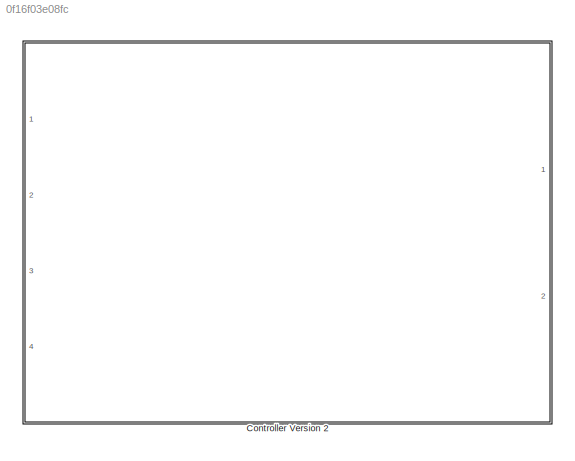
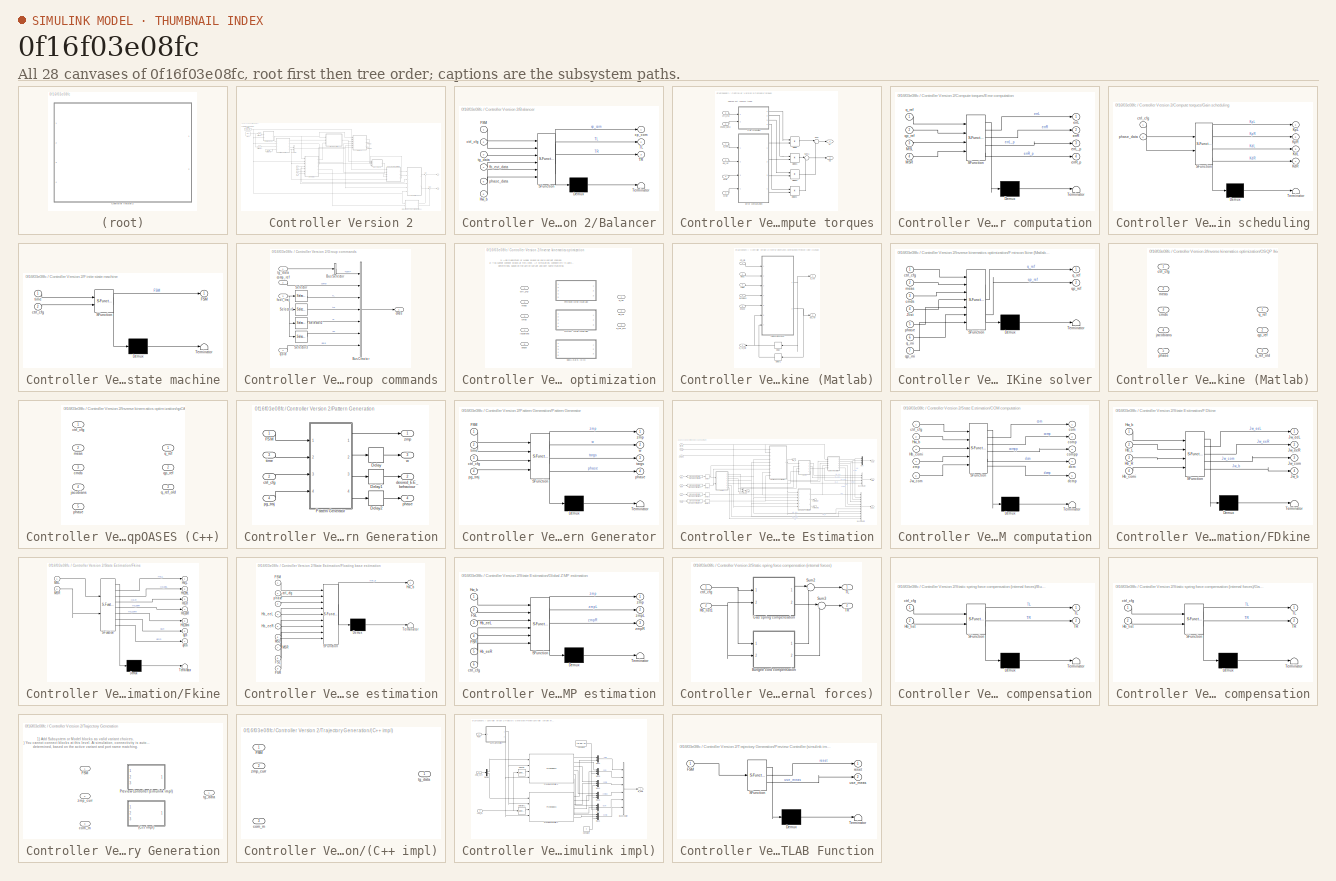
[diagram: thumbnail index - all 28 canvases of the model, root first then tree order]
MODEL slx_0f16f03e08fc
KIND model
CONFIG AbsTol = auto
CONFIG EnableMultiTasking = off
CONFIG FixedStep = auto
CONFIG MaxStep = auto
CONFIG MinStep = auto
CONFIG RelTol = 1e-3
CONFIG SampleTimeConstraint = Unconstrained
CONFIG SolverName = ode23
CONFIG StartTime = 0.0
CONFIG StopTime = Tsim
BLOCK [SubSystem] Controller Version 2
  Ports = [4, 2]
  RequestExecContextInheritance = off
BLOCK [SubSystem] Controller Version 2/Balancer
  ErrorFcn = Stateflow.Translate.translate
  PermitHierarchicalResolution = ExplicitOnly
  Ports = [6, 3]
  RequestExecContextInheritance = off
  SFBlockType = MATLAB Function
  TreatAsAtomicUnit = on
BLOCK [Demux] Controller Version 2/Balancer/ Demux 
  Outputs = 1
  Ports = [1, 1]
BLOCK [S-Function] Controller Version 2/Balancer/ SFunction 
  EnableBusSupport = on
  FunctionName = sf_sfun
  PortCounts = [6 4]
  Ports = [6, 4]
  SFcnIsStateOwnerBlock = off
  SFunctionDeploymentMode = off
  Tag = Stateflow S-Function 6
BLOCK [Terminator] Controller Version 2/Balancer/ Terminator 
BLOCK [Inport] Controller Version 2/Balancer/FSM
BLOCK [Inport] Controller Version 2/Balancer/Hw_b
  Port = 6
BLOCK [Outport] Controller Version 2/Balancer/TL
  Port = 2
BLOCK [Outport] Controller Version 2/Balancer/TR
  Port = 3
BLOCK [Inport] Controller Version 2/Balancer/ctrl_cfg
  Port = 2
BLOCK [Inport] Controller Version 2/Balancer/fb_est_data
  Port = 4
BLOCK [Inport] Controller Version 2/Balancer/phase_data
  Port = 5
BLOCK [Inport] Controller Version 2/Balancer/tg_data
  Port = 3
BLOCK [Outport] Controller Version 2/Balancer/xp_com
BLOCK [BusCreator] Controller Version 2/Bus Creator
  DisplayOption = bar
  InheritFromInputs = on
  Inputs = 2
  Ports = [2, 1]
BLOCK [Clock] Controller Version 2/Clock
  Decimation = 1
  DisplayTime = on
BLOCK [SubSystem] Controller Version 2/Compute torques
  NameLocation = top
  Ports = [6, 2]
  RequestExecContextInheritance = off
BLOCK [Product] Controller Version 2/Compute torques/Divide
  Inputs = **
  Multiplication = Matrix(*)
  Ports = [2, 1]
BLOCK [Product] Controller Version 2/Compute torques/Divide1
  Inputs = **
  Multiplication = Matrix(*)
  Ports = [2, 1]
BLOCK [Product] Controller Version 2/Compute torques/Divide2
  Inputs = **
  Multiplication = Matrix(*)
  Ports = [2, 1]
BLOCK [Product] Controller Version 2/Compute torques/Divide3
  Inputs = **
  Multiplication = Matrix(*)
  Ports = [2, 1]
BLOCK [SubSystem] Controller Version 2/Compute torques/Error computation
  ErrorFcn = Stateflow.Translate.translate
  PermitHierarchicalResolution = ExplicitOnly
  Ports = [4, 4]
  RequestExecContextInheritance = off
  SFBlockType = MATLAB Function
  TreatAsAtomicUnit = on
BLOCK [Demux] Controller Version 2/Compute torques/Error computation/ Demux 
  Outputs = 1
  Ports = [1, 1]
BLOCK [S-Function] Controller Version 2/Compute torques/Error computation/ SFunction 
  EnableBusSupport = on
  FunctionName = sf_sfun
  PortCounts = [4 5]
  Ports = [4, 5]
  SFcnIsStateOwnerBlock = off
  SFunctionDeploymentMode = off
  Tag = Stateflow S-Function 13
BLOCK [Terminator] Controller Version 2/Compute torques/Error computation/ Terminator 
BLOCK [Inport] Controller Version 2/Compute torques/Error computation/MSL
  Port = 3
BLOCK [Inport] Controller Version 2/Compute torques/Error computation/MSR
  Port = 4
BLOCK [Outport] Controller Version 2/Compute torques/Error computation/errL
BLOCK [Outport] Controller Version 2/Compute torques/Error computation/errL_p
  Port = 3
BLOCK [Outport] Controller Version 2/Compute torques/Error computation/errR
  Port = 2
BLOCK [Outport] Controller Version 2/Compute torques/Error computation/errR_p
  Port = 4
BLOCK [Inport] Controller Version 2/Compute torques/Error computation/q_ref
BLOCK [Inport] Controller Version 2/Compute torques/Error computation/qp_ref
  Port = 2
BLOCK [SubSystem] Controller Version 2/Compute torques/Gain scheduling
  ErrorFcn = Stateflow.Translate.translate
  PermitHierarchicalResolution = ExplicitOnly
  Ports = [2, 4]
  RequestExecContextInheritance = off
  SFBlockType = MATLAB Function
  TreatAsAtomicUnit = on
BLOCK [Demux] Controller Version 2/Compute torques/Gain scheduling/ Demux 
  Outputs = 1
  Ports = [1, 1]
BLOCK [S-Function] Controller Version 2/Compute torques/Gain scheduling/ SFunction 
  EnableBusSupport = on
  FunctionName = sf_sfun
  PortCounts = [2 5]
  Ports = [2, 5]
  SFcnIsStateOwnerBlock = off
  SFunctionDeploymentMode = off
  Tag = Stateflow S-Function 12
BLOCK [Terminator] Controller Version 2/Compute torques/Gain scheduling/ Terminator 
BLOCK [Outport] Controller Version 2/Compute torques/Gain scheduling/KdL
  Port = 3
BLOCK [Outport] Controller Version 2/Compute torques/Gain scheduling/KdR
  Port = 4
BLOCK [Outport] Controller Version 2/Compute torques/Gain scheduling/KpL
BLOCK [Outport] Controller Version 2/Compute torques/Gain scheduling/KpR
  Port = 2
BLOCK [Inport] Controller Version 2/Compute torques/Gain scheduling/ctrl_cfg
BLOCK [Inport] Controller Version 2/Compute torques/Gain scheduling/phase_data
  Port = 2
BLOCK [Inport] Controller Version 2/Compute torques/MSL
  Port = 3
BLOCK [Inport] Controller Version 2/Compute torques/MSR
  Port = 4
BLOCK [Sum] Controller Version 2/Compute torques/Sum
  Inputs = |++
  Ports = [2, 1]
BLOCK [Sum] Controller Version 2/Compute torques/Sum1
  Inputs = |++
  Ports = [2, 1]
BLOCK [Outport] Controller Version 2/Compute torques/TL
BLOCK [Outport] Controller Version 2/Compute torques/TR
  Port = 2
BLOCK [Inport] Controller Version 2/Compute torques/ctrl_cfg
  Port = 6
BLOCK [Inport] Controller Version 2/Compute torques/phase_data
  Port = 5
BLOCK [Inport] Controller Version 2/Compute torques/q_ref
BLOCK [Inport] Controller Version 2/Compute torques/qp_ref
  Port = 2
BLOCK [Constant] Controller Version 2/Configuration parameters of the controller
  NameLocation = top
  OutDataTypeStr = Bus: ctrl_cfg_rem_bus
  SampleTime = ctrl_cfg_rem.par.Ts
  Value = ctrl_cfg_rem
BLOCK [Constant] Controller Version 2/Entire trajectory
  OutDataTypeStr = Bus: pg_traj_bus
  SampleTime = ctrl_cfg_rem.par.Ts
  Value = pg_traj
  VectorParams1D = off
BLOCK [Inport] Controller Version 2/FSL
  Port = 3
BLOCK [Inport] Controller Version 2/FSR
  Port = 4
BLOCK [SubSystem] Controller Version 2/Finite state machine
  ErrorFcn = Stateflow.Translate.translate
  PermitHierarchicalResolution = ExplicitOnly
  Ports = [2, 1]
  RequestExecContextInheritance = off
  SFBlockType = MATLAB Function
  TreatAsAtomicUnit = on
BLOCK [Demux] Controller Version 2/Finite state machine/ Demux 
  Outputs = 1
  Ports = [1, 1]
BLOCK [S-Function] Controller Version 2/Finite state machine/ SFunction 
  EnableBusSupport = on
  FunctionName = sf_sfun
  PortCounts = [2 2]
  Ports = [2, 2]
  SFcnIsStateOwnerBlock = off
  SFunctionDeploymentMode = off
  Tag = Stateflow S-Function 1
BLOCK [Terminator] Controller Version 2/Finite state machine/ Terminator 
BLOCK [Outport] Controller Version 2/Finite state machine/FSM
BLOCK [Inport] Controller Version 2/Finite state machine/ctrl_cfg
  Port = 2
BLOCK [Inport] Controller Version 2/Finite state machine/time
BLOCK [SubSystem] Controller Version 2/Group commands
  Ports = [4, 1]
  RequestExecContextInheritance = off
BLOCK [BusCreator] Controller Version 2/Group commands/Bus Creator
  DisplayOption = bar
  InheritFromInputs = on
  Inputs = 7
  Ports = [7, 1]
BLOCK [BusSelector] Controller Version 2/Group commands/Bus Selector
  OutputSignals = com
  Ports = [1, 1]
BLOCK [Selector] Controller Version 2/Group commands/Selector
  IndexOptions = Index vector (dialog)
  Indices = [1:3]
  InputPortWidth = 12
  OutputSizes = 1
  Ports = [1, 1]
BLOCK [Selector] Controller Version 2/Group commands/Selector1
  IndexOptions = Index vector (dialog)
  Indices = [4:6]
  InputPortWidth = 12
  OutputSizes = 1
  Ports = [1, 1]
BLOCK [Selector] Controller Version 2/Group commands/Selector2
  IndexOptions = Index vector (dialog)
  Indices = [7:9]
  InputPortWidth = 12
  OutputSizes = 1
  Ports = [1, 1]
BLOCK [Selector] Controller Version 2/Group commands/Selector3
  IndexOptions = Index vector (dialog)
  Indices = [10:12]
  InputPortWidth = 12
  OutputSizes = 1
  Ports = [1, 1]
BLOCK [Outport] Controller Version 2/Group commands/cmds
BLOCK [Inport] Controller Version 2/Group commands/comp_ref
  Port = 2
BLOCK [Inport] Controller Version 2/Group commands/foot_traj
  Port = 3
BLOCK [Inport] Controller Version 2/Group commands/qold
  Port = 4
BLOCK [Inport] Controller Version 2/Group commands/tg_data
BLOCK [SubSystem] Controller Version 2/Inverse kinematics optimization
  NameLocation = top
  Ports = [5, 3]
  RequestExecContextInheritance = off
  Variant = on
BLOCK [SubSystem] Controller Version 2/Inverse kinematics optimization/Fmincon Ikine (Matlab)
  Ports = [5, 3]
  RequestExecContextInheritance = off
  VariantControl = VAR_IK ==1
BLOCK [Delay] Controller Version 2/Inverse kinematics optimization/Fmincon Ikine (Matlab)/Delay
  DelayLength = 1
  InitialCondition = ik_opt.q_ini
  InputPortMap = u0
  NameLocation = top
  Ports = [1, 1]
  SampleTime = Ts
BLOCK [Delay] Controller Version 2/Inverse kinematics optimization/Fmincon Ikine (Matlab)/Delay1
  DelayLength = 1
  InitialCondition = ik_opt.qp_ini
  InputPortMap = u0
  NameLocation = top
  Ports = [1, 1]
  SampleTime = Ts
BLOCK [SubSystem] Controller Version 2/Inverse kinematics optimization/Fmincon Ikine (Matlab)/Full body IKine solver
  ErrorFcn = Stateflow.Translate.translate
  PermitHierarchicalResolution = ExplicitOnly
  Ports = [7, 2]
  RequestExecContextInheritance = off
  SFBlockType = MATLAB Function
  TreatAsAtomicUnit = on
BLOCK [Demux] Controller Version 2/Inverse kinematics optimization/Fmincon Ikine (Matlab)/Full body IKine solver/ Demux 
  Outputs = 1
  Ports = [1, 1]
BLOCK [S-Function] Controller Version 2/Inverse kinematics optimization/Fmincon Ikine (Matlab)/Full body IKine solver/ SFunction 
  EnableBusSupport = on
  FunctionName = sf_sfun
  PortCounts = [7 3]
  Ports = [7, 3]
  SFcnIsStateOwnerBlock = off
  SFunctionDeploymentMode = off
  Tag = Stateflow S-Function 14
BLOCK [Terminator] Controller Version 2/Inverse kinematics optimization/Fmincon Ikine (Matlab)/Full body IKine solver/ Terminator 
BLOCK [Inport] Controller Version 2/Inverse kinematics optimization/Fmincon Ikine (Matlab)/Full body IKine solver/Jlist
  Port = 4
BLOCK [Inport] Controller Version 2/Inverse kinematics optimization/Fmincon Ikine (Matlab)/Full body IKine solver/cmds
  Port = 3
BLOCK [Inport] Controller Version 2/Inverse kinematics optimization/Fmincon Ikine (Matlab)/Full body IKine solver/ctrl_cfg
BLOCK [Inport] Controller Version 2/Inverse kinematics optimization/Fmincon Ikine (Matlab)/Full body IKine solver/meas
  Port = 2
BLOCK [Inport] Controller Version 2/Inverse kinematics optimization/Fmincon Ikine (Matlab)/Full body IKine solver/phase
  Port = 5
BLOCK [Inport] Controller Version 2/Inverse kinematics optimization/Fmincon Ikine (Matlab)/Full body IKine solver/q_ini
  Port = 6
BLOCK [Outport] Controller Version 2/Inverse kinematics optimization/Fmincon Ikine (Matlab)/Full body IKine solver/q_ref
BLOCK [Inport] Controller Version 2/Inverse kinematics optimization/Fmincon Ikine (Matlab)/Full body IKine solver/qp_ini
  Port = 7
BLOCK [Outport] Controller Version 2/Inverse kinematics optimization/Fmincon Ikine (Matlab)/Full body IKine solver/qp_ref
  Port = 2
BLOCK [Inport] Controller Version 2/Inverse kinematics optimization/Fmincon Ikine (Matlab)/cmds
  Port = 3
BLOCK [Inport] Controller Version 2/Inverse kinematics optimization/Fmincon Ikine (Matlab)/ctrl_cfg
BLOCK [Inport] Controller Version 2/Inverse kinematics optimization/Fmincon Ikine (Matlab)/jacobians
  Port = 4
BLOCK [Inport] Controller Version 2/Inverse kinematics optimization/Fmincon Ikine (Matlab)/meas
  Port = 2
BLOCK [Inport] Controller Version 2/Inverse kinematics optimization/Fmincon Ikine (Matlab)/phase
  Port = 5
BLOCK [Outport] Controller Version 2/Inverse kinematics optimization/Fmincon Ikine (Matlab)/q_ref
BLOCK [Outport] Controller Version 2/Inverse kinematics optimization/Fmincon Ikine (Matlab)/q_ref_old
  NameLocation = top
  Port = 3
BLOCK [Outport] Controller Version 2/Inverse kinematics optimization/Fmincon Ikine (Matlab)/qp_ref
  Port = 2
BLOCK [SubSystem] Controller Version 2/Inverse kinematics optimization/OSQP Ikine (Matlab)
  Ports = [5, 3]
  RequestExecContextInheritance = off
  VariantControl = VAR_IK ==2
BLOCK [Inport] Controller Version 2/Inverse kinematics optimization/OSQP Ikine (Matlab)/cmds
  Port = 3
BLOCK [Inport] Controller Version 2/Inverse kinematics optimization/OSQP Ikine (Matlab)/ctrl_cfg
BLOCK [Inport] Controller Version 2/Inverse kinematics optimization/OSQP Ikine (Matlab)/jacobians
  Port = 4
BLOCK [Inport] Controller Version 2/Inverse kinematics optimization/OSQP Ikine (Matlab)/meas
  Port = 2
BLOCK [Inport] Controller Version 2/Inverse kinematics optimization/OSQP Ikine (Matlab)/phase
  Port = 5
BLOCK [Outport] Controller Version 2/Inverse kinematics optimization/OSQP Ikine (Matlab)/q_ref
BLOCK [Outport] Controller Version 2/Inverse kinematics optimization/OSQP Ikine (Matlab)/q_ref_old
  Port = 3
BLOCK [Outport] Controller Version 2/Inverse kinematics optimization/OSQP Ikine (Matlab)/qp_ref
  Port = 2
BLOCK [Inport] Controller Version 2/Inverse kinematics optimization/cmds
  Port = 3
BLOCK [Inport] Controller Version 2/Inverse kinematics optimization/ctrl_cfg
BLOCK [Inport] Controller Version 2/Inverse kinematics optimization/jacobians
  Port = 4
BLOCK [Inport] Controller Version 2/Inverse kinematics optimization/meas
  Port = 2
BLOCK [Inport] Controller Version 2/Inverse kinematics optimization/phase
  Port = 5
BLOCK [Outport] Controller Version 2/Inverse kinematics optimization/q_ref
BLOCK [Outport] Controller Version 2/Inverse kinematics optimization/q_ref_old
  Port = 3
BLOCK [SubSystem] Controller Version 2/Inverse kinematics optimization/qpOASES (C++)
  Ports = [5, 3]
  RequestExecContextInheritance = off
  VariantControl = VAR_IK ==3
BLOCK [Inport] Controller Version 2/Inverse kinematics optimization/qpOASES (C++)/cmds
  Port = 3
BLOCK [Inport] Controller Version 2/Inverse kinematics optimization/qpOASES (C++)/ctrl_cfg
BLOCK [Inport] Controller Version 2/Inverse kinematics optimization/qpOASES (C++)/jacobians
  Port = 4
BLOCK [Inport] Controller Version 2/Inverse kinematics optimization/qpOASES (C++)/meas
  Port = 2
BLOCK [Inport] Controller Version 2/Inverse kinematics optimization/qpOASES (C++)/phase
  Port = 5
BLOCK [Outport] Controller Version 2/Inverse kinematics optimization/qpOASES (C++)/q_ref
BLOCK [Outport] Controller Version 2/Inverse kinematics optimization/qpOASES (C++)/q_ref_old
  Port = 3
BLOCK [Outport] Controller Version 2/Inverse kinematics optimization/qpOASES (C++)/qp_ref
  Port = 2
BLOCK [Outport] Controller Version 2/Inverse kinematics optimization/qp_ref
  Port = 2
BLOCK [Inport] Controller Version 2/MSL
BLOCK [Inport] Controller Version 2/MSR
  Port = 2
BLOCK [SubSystem] Controller Version 2/Pattern Generation
  Ports = [4, 4]
  RequestExecContextInheritance = off
BLOCK [Delay] Controller Version 2/Pattern Generation/Delay
  DelayLength = ctrl_cfg_rem.tg.N_L
  InitialCondition = 0
  InputPortMap = u0
  Ports = [1, 1]
  SampleTime = ctrl_cfg_rem.par.Ts
BLOCK [Delay] Controller Version 2/Pattern Generation/Delay1
  DelayLength = ctrl_cfg_rem.tg.N_L
  InitialCondition = 0
  InputPortMap = u0
  Ports = [1, 1]
  SampleTime = ctrl_cfg_rem.par.Ts
BLOCK [Delay] Controller Version 2/Pattern Generation/Delay2
  DelayLength = ctrl_cfg_rem.tg.N_L
  InitialCondition = 0
  InputPortMap = u0
  Ports = [1, 1]
  SampleTime = ctrl_cfg_rem.par.Ts
BLOCK [Inport] Controller Version 2/Pattern Generation/FSM
BLOCK [SubSystem] Controller Version 2/Pattern Generation/Pattern Generator
  ErrorFcn = Stateflow.Translate.translate
  PermitHierarchicalResolution = ExplicitOnly
  Ports = [4, 4]
  RequestExecContextInheritance = off
  SFBlockType = MATLAB Function
  TreatAsAtomicUnit = on
BLOCK [Demux] Controller Version 2/Pattern Generation/Pattern Generator/ Demux 
  Outputs = 1
  Ports = [1, 1]
BLOCK [S-Function] Controller Version 2/Pattern Generation/Pattern Generator/ SFunction 
  EnableBusSupport = on
  FunctionName = sf_sfun
  PortCounts = [4 5]
  Ports = [4, 5]
  SFcnIsStateOwnerBlock = off
  SFunctionDeploymentMode = off
  Tag = Stateflow S-Function 2
BLOCK [Terminator] Controller Version 2/Pattern Generation/Pattern Generator/ Terminator 
BLOCK [Inport] Controller Version 2/Pattern Generation/Pattern Generator/FSM
BLOCK [Inport] Controller Version 2/Pattern Generation/Pattern Generator/ctrl_cfg
  Port = 3
BLOCK [Inport] Controller Version 2/Pattern Generation/Pattern Generator/pg_traj
  Port = 4
BLOCK [Outport] Controller Version 2/Pattern Generation/Pattern Generator/phase
  Port = 4
BLOCK [Outport] Controller Version 2/Pattern Generation/Pattern Generator/targs
  Port = 3
BLOCK [Inport] Controller Version 2/Pattern Generation/Pattern Generator/time
  Port = 2
BLOCK [Outport] Controller Version 2/Pattern Generation/Pattern Generator/w
  Port = 2
BLOCK [Outport] Controller Version 2/Pattern Generation/Pattern Generator/zmp
BLOCK [Inport] Controller Version 2/Pattern Generation/ctrl_cfg
  Port = 2
BLOCK [Outport] Controller Version 2/Pattern Generation/desired_EE_behaviour
  Port = 2
BLOCK [Inport] Controller Version 2/Pattern Generation/pg_traj
  Port = 4
BLOCK [Outport] Controller Version 2/Pattern Generation/phase
  Port = 4
BLOCK [Inport] Controller Version 2/Pattern Generation/time
  Port = 3
BLOCK [Outport] Controller Version 2/Pattern Generation/w
  Port = 3
BLOCK [Outport] Controller Version 2/Pattern Generation/zmp
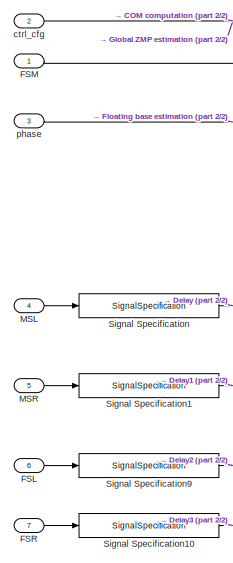
[diagram: Controller Version 2/State Estimation - part 1/2, left side, full height]
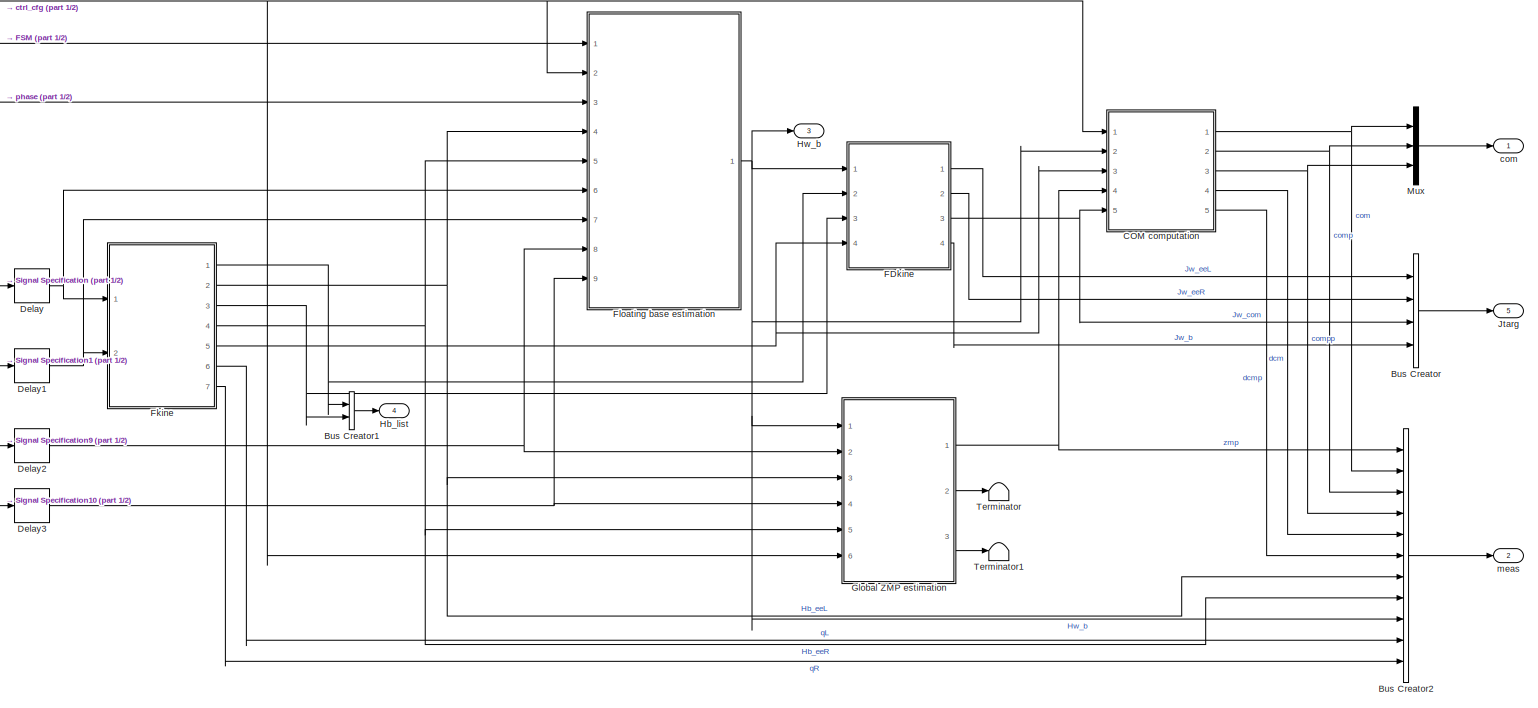
[diagram: Controller Version 2/State Estimation - part 2/2, most of the canvas]
BLOCK [SubSystem] Controller Version 2/State Estimation
  Ports = [7, 5]
  RequestExecContextInheritance = off
BLOCK [BusCreator] Controller Version 2/State Estimation/Bus Creator
  DisplayOption = bar
  InheritFromInputs = on
  Inputs = 4
  Ports = [4, 1]
BLOCK [BusCreator] Controller Version 2/State Estimation/Bus Creator1
  DisplayOption = bar
  InheritFromInputs = on
  Inputs = 2
  Ports = [2, 1]
BLOCK [BusCreator] Controller Version 2/State Estimation/Bus Creator2
  DisplayOption = bar
  InheritFromInputs = on
  Inputs = 11
  Ports = [11, 1]
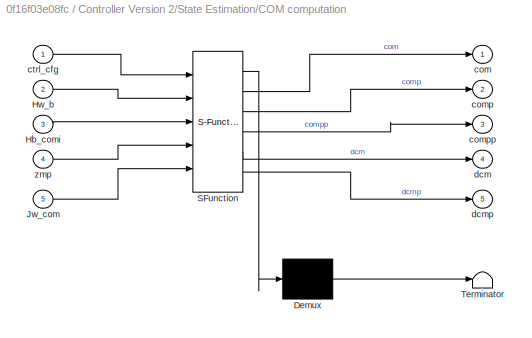
BLOCK [SubSystem] Controller Version 2/State Estimation/COM computation
  ErrorFcn = Stateflow.Translate.translate
  PermitHierarchicalResolution = ExplicitOnly
  Ports = [5, 5]
  RequestExecContextInheritance = off
  SFBlockType = MATLAB Function
  TreatAsAtomicUnit = on
BLOCK [Demux] Controller Version 2/State Estimation/COM computation/ Demux 
  Outputs = 1
  Ports = [1, 1]
BLOCK [S-Function] Controller Version 2/State Estimation/COM computation/ SFunction 
  EnableBusSupport = on
  FunctionName = sf_sfun
  PortCounts = [5 6]
  Ports = [5, 6]
  SFcnIsStateOwnerBlock = off
  SFunctionDeploymentMode = off
  Tag = Stateflow S-Function 9
BLOCK [Terminator] Controller Version 2/State Estimation/COM computation/ Terminator 
BLOCK [Inport] Controller Version 2/State Estimation/COM computation/Hb_comi
  Port = 3
BLOCK [Inport] Controller Version 2/State Estimation/COM computation/Hw_b
  Port = 2
BLOCK [Inport] Controller Version 2/State Estimation/COM computation/Jw_com
  Port = 5
BLOCK [Outport] Controller Version 2/State Estimation/COM computation/com
BLOCK [Outport] Controller Version 2/State Estimation/COM computation/comp
  Port = 2
BLOCK [Outport] Controller Version 2/State Estimation/COM computation/compp
  Port = 3
BLOCK [Inport] Controller Version 2/State Estimation/COM computation/ctrl_cfg
BLOCK [Outport] Controller Version 2/State Estimation/COM computation/dcm
  Port = 4
BLOCK [Outport] Controller Version 2/State Estimation/COM computation/dcmp
  Port = 5
BLOCK [Inport] Controller Version 2/State Estimation/COM computation/zmp
  Port = 4
BLOCK [Delay] Controller Version 2/State Estimation/Delay
  DelayLength = 1
  InitialCondition = fb_est.init.MSL
  InputPortMap = u0
  Ports = [1, 1]
  SampleTime = Ts
BLOCK [Delay] Controller Version 2/State Estimation/Delay1
  DelayLength = 1
  InitialCondition = fb_est.init.MSR
  InputPortMap = u0
  Ports = [1, 1]
  SampleTime = Ts
BLOCK [Delay] Controller Version 2/State Estimation/Delay2
  DelayLength = 1
  InitialCondition = fb_est.init.FSL
  InputPortMap = u0
  Ports = [1, 1]
  SampleTime = Ts
BLOCK [Delay] Controller Version 2/State Estimation/Delay3
  DelayLength = 1
  InitialCondition = fb_est.init.FSR
  InputPortMap = u0
  Ports = [1, 1]
  SampleTime = Ts
BLOCK [SubSystem] Controller Version 2/State Estimation/FDkine
  ErrorFcn = Stateflow.Translate.translate
  PermitHierarchicalResolution = ExplicitOnly
  Ports = [4, 4]
  RequestExecContextInheritance = off
  SFBlockType = MATLAB Function
  TreatAsAtomicUnit = on
BLOCK [Demux] Controller Version 2/State Estimation/FDkine/ Demux 
  Outputs = 1
  Ports = [1, 1]
BLOCK [S-Function] Controller Version 2/State Estimation/FDkine/ SFunction 
  EnableBusSupport = on
  FunctionName = sf_sfun
  PortCounts = [4 5]
  Ports = [4, 5]
  SFcnIsStateOwnerBlock = off
  SFunctionDeploymentMode = off
  Tag = Stateflow S-Function 8
BLOCK [Terminator] Controller Version 2/State Estimation/FDkine/ Terminator 
BLOCK [Inport] Controller Version 2/State Estimation/FDkine/Hb_L
  Port = 2
BLOCK [Inport] Controller Version 2/State Estimation/FDkine/Hb_R
  Port = 3
BLOCK [Inport] Controller Version 2/State Estimation/FDkine/Hb_comi
  Port = 4
BLOCK [Inport] Controller Version 2/State Estimation/FDkine/Hw_b
BLOCK [Outport] Controller Version 2/State Estimation/FDkine/Jw_b
  Port = 4
BLOCK [Outport] Controller Version 2/State Estimation/FDkine/Jw_com
  Port = 3
BLOCK [Outport] Controller Version 2/State Estimation/FDkine/Jw_eeL
BLOCK [Outport] Controller Version 2/State Estimation/FDkine/Jw_eeR
  Port = 2
BLOCK [Inport] Controller Version 2/State Estimation/FSL
  Port = 6
BLOCK [Inport] Controller Version 2/State Estimation/FSM
BLOCK [Inport] Controller Version 2/State Estimation/FSR
  Port = 7
BLOCK [SubSystem] Controller Version 2/State Estimation/Fkine
  ErrorFcn = Stateflow.Translate.translate
  PermitHierarchicalResolution = ExplicitOnly
  Ports = [2, 7]
  RequestExecContextInheritance = off
  SFBlockType = MATLAB Function
  TreatAsAtomicUnit = on
BLOCK [Demux] Controller Version 2/State Estimation/Fkine/ Demux 
  Outputs = 1
  Ports = [1, 1]
BLOCK [S-Function] Controller Version 2/State Estimation/Fkine/ SFunction 
  EnableBusSupport = on
  FunctionName = sf_sfun
  PortCounts = [2 8]
  Ports = [2, 8]
  SFcnIsStateOwnerBlock = off
  SFunctionDeploymentMode = off
  Tag = Stateflow S-Function 4
BLOCK [Terminator] Controller Version 2/State Estimation/Fkine/ Terminator 
BLOCK [Outport] Controller Version 2/State Estimation/Fkine/Hb_L
BLOCK [Outport] Controller Version 2/State Estimation/Fkine/Hb_R
  Port = 3
BLOCK [Outport] Controller Version 2/State Estimation/Fkine/Hb_comi
  Port = 5
BLOCK [Outport] Controller Version 2/State Estimation/Fkine/Hb_eeL
  Port = 2
BLOCK [Outport] Controller Version 2/State Estimation/Fkine/Hb_eeR
  Port = 4
BLOCK [Inport] Controller Version 2/State Estimation/Fkine/MSL
BLOCK [Inport] Controller Version 2/State Estimation/Fkine/MSR
  Port = 2
BLOCK [Outport] Controller Version 2/State Estimation/Fkine/qLm
  Port = 6
BLOCK [Outport] Controller Version 2/State Estimation/Fkine/qRm
  Port = 7
BLOCK [SubSystem] Controller Version 2/State Estimation/Floating base estimation
  ErrorFcn = Stateflow.Translate.translate
  PermitHierarchicalResolution = ExplicitOnly
  Ports = [9, 1]
  RequestExecContextInheritance = off
  SFBlockType = MATLAB Function
  TreatAsAtomicUnit = on
BLOCK [Demux] Controller Version 2/State Estimation/Floating base estimation/ Demux 
  Outputs = 1
  Ports = [1, 1]
BLOCK [S-Function] Controller Version 2/State Estimation/Floating base estimation/ SFunction 
  EnableBusSupport = on
  FunctionName = sf_sfun
  PortCounts = [9 2]
  Ports = [9, 2]
  SFcnIsStateOwnerBlock = off
  SFunctionDeploymentMode = off
  Tag = Stateflow S-Function 5
BLOCK [Terminator] Controller Version 2/State Estimation/Floating base estimation/ Terminator 
BLOCK [Inport] Controller Version 2/State Estimation/Floating base estimation/FSL
  Port = 8
BLOCK [Inport] Controller Version 2/State Estimation/Floating base estimation/FSM
BLOCK [Inport] Controller Version 2/State Estimation/Floating base estimation/FSR
  Port = 9
BLOCK [Inport] Controller Version 2/State Estimation/Floating base estimation/Hb_eeL
  Port = 4
BLOCK [Inport] Controller Version 2/State Estimation/Floating base estimation/Hb_eeR
  Port = 5
BLOCK [Outport] Controller Version 2/State Estimation/Floating base estimation/Hw_b
BLOCK [Inport] Controller Version 2/State Estimation/Floating base estimation/MSL
  Port = 6
BLOCK [Inport] Controller Version 2/State Estimation/Floating base estimation/MSR
  Port = 7
BLOCK [Inport] Controller Version 2/State Estimation/Floating base estimation/ctrl_cfg
  Port = 2
BLOCK [Inport] Controller Version 2/State Estimation/Floating base estimation/phase
  Port = 3
BLOCK [SubSystem] Controller Version 2/State Estimation/Global ZMP estimation
  ErrorFcn = Stateflow.Translate.translate
  PermitHierarchicalResolution = ExplicitOnly
  Ports = [6, 3]
  RequestExecContextInheritance = off
  SFBlockType = MATLAB Function
  TreatAsAtomicUnit = on
BLOCK [Demux] Controller Version 2/State Estimation/Global ZMP estimation/ Demux 
  Outputs = 1
  Ports = [1, 1]
BLOCK [S-Function] Controller Version 2/State Estimation/Global ZMP estimation/ SFunction 
  EnableBusSupport = on
  FunctionName = sf_sfun
  PortCounts = [6 4]
  Ports = [6, 4]
  SFcnIsStateOwnerBlock = off
  SFunctionDeploymentMode = off
  Tag = Stateflow S-Function 10
BLOCK [Terminator] Controller Version 2/State Estimation/Global ZMP estimation/ Terminator 
BLOCK [Inport] Controller Version 2/State Estimation/Global ZMP estimation/FSL
  Port = 2
BLOCK [Inport] Controller Version 2/State Estimation/Global ZMP estimation/FSR
  Port = 4
BLOCK [Inport] Controller Version 2/State Estimation/Global ZMP estimation/Hb_eeL
  Port = 3
BLOCK [Inport] Controller Version 2/State Estimation/Global ZMP estimation/Hb_eeR
  Port = 5
BLOCK [Inport] Controller Version 2/State Estimation/Global ZMP estimation/Hw_b
BLOCK [Inport] Controller Version 2/State Estimation/Global ZMP estimation/ctrl_cfg
  Port = 6
BLOCK [Outport] Controller Version 2/State Estimation/Global ZMP estimation/zmp
BLOCK [Outport] Controller Version 2/State Estimation/Global ZMP estimation/zmpL
  Port = 2
BLOCK [Outport] Controller Version 2/State Estimation/Global ZMP estimation/zmpR
  Port = 3
BLOCK [Outport] Controller Version 2/State Estimation/Hb_list
  Port = 4
BLOCK [Outport] Controller Version 2/State Estimation/Hw_b
  Port = 3
BLOCK [Outport] Controller Version 2/State Estimation/Jtarg
  Port = 5
BLOCK [Inport] Controller Version 2/State Estimation/MSL
  Port = 4
BLOCK [Inport] Controller Version 2/State Estimation/MSR
  Port = 5
BLOCK [Mux] Controller Version 2/State Estimation/Mux
  DisplayOption = bar
  Inputs = 3
  Ports = [3, 1]
BLOCK [SignalSpecification] Controller Version 2/State Estimation/Signal Specification
  OutDataTypeStr = Bus: leg_str_bus
BLOCK [SignalSpecification] Controller Version 2/State Estimation/Signal Specification1
  OutDataTypeStr = Bus: leg_str_bus
BLOCK [SignalSpecification] Controller Version 2/State Estimation/Signal Specification10
  OutDataTypeStr = Bus: fs_str_bus
BLOCK [SignalSpecification] Controller Version 2/State Estimation/Signal Specification9
  OutDataTypeStr = Bus: fs_str_bus
BLOCK [Terminator] Controller Version 2/State Estimation/Terminator
BLOCK [Terminator] Controller Version 2/State Estimation/Terminator1
BLOCK [Outport] Controller Version 2/State Estimation/com
BLOCK [Inport] Controller Version 2/State Estimation/ctrl_cfg
  Port = 2
BLOCK [Outport] Controller Version 2/State Estimation/meas
  Port = 2
BLOCK [Inport] Controller Version 2/State Estimation/phase
  NameLocation = top
  Port = 3
BLOCK [SubSystem] Controller Version 2/Static spring force compensation (internal forces)
  Ports = [2, 2]
  RequestExecContextInheritance = off
BLOCK [SubSystem] Controller Version 2/Static spring force compensation (internal forces)/Bungee cord compensation
  ErrorFcn = Stateflow.Translate.translate
  PermitHierarchicalResolution = ExplicitOnly
  Ports = [2, 2]
  RequestExecContextInheritance = off
  SFBlockType = MATLAB Function
  TreatAsAtomicUnit = on
BLOCK [Demux] Controller Version 2/Static spring force compensation (internal forces)/Bungee cord compensation/ Demux 
  Outputs = 1
  Ports = [1, 1]
BLOCK [S-Function] Controller Version 2/Static spring force compensation (internal forces)/Bungee cord compensation/ SFunction 
  EnableBusSupport = on
  FunctionName = sf_sfun
  PortCounts = [2 3]
  Ports = [2, 3]
  SFcnIsStateOwnerBlock = off
  SFunctionDeploymentMode = off
  Tag = Stateflow S-Function 11
BLOCK [Terminator] Controller Version 2/Static spring force compensation (internal forces)/Bungee cord compensation/ Terminator 
BLOCK [Inport] Controller Version 2/Static spring force compensation (internal forces)/Bungee cord compensation/Hb_list
  Port = 2
BLOCK [Outport] Controller Version 2/Static spring force compensation (internal forces)/Bungee cord compensation/TL
BLOCK [Outport] Controller Version 2/Static spring force compensation (internal forces)/Bungee cord compensation/TR
  Port = 2
BLOCK [Inport] Controller Version 2/Static spring force compensation (internal forces)/Bungee cord compensation/ctrl_cfg
BLOCK [SubSystem] Controller Version 2/Static spring force compensation (internal forces)/Gas spring compensation
  ErrorFcn = Stateflow.Translate.translate
  PermitHierarchicalResolution = ExplicitOnly
  Ports = [2, 2]
  RequestExecContextInheritance = off
  SFBlockType = MATLAB Function
  TreatAsAtomicUnit = on
BLOCK [Demux] Controller Version 2/Static spring force compensation (internal forces)/Gas spring compensation/ Demux 
  Outputs = 1
  Ports = [1, 1]
BLOCK [S-Function] Controller Version 2/Static spring force compensation (internal forces)/Gas spring compensation/ SFunction 
  EnableBusSupport = on
  FunctionName = sf_sfun
  PortCounts = [2 3]
  Ports = [2, 3]
  SFcnIsStateOwnerBlock = off
  SFunctionDeploymentMode = off
  Tag = Stateflow S-Function 7
BLOCK [Terminator] Controller Version 2/Static spring force compensation (internal forces)/Gas spring compensation/ Terminator 
BLOCK [Inport] Controller Version 2/Static spring force compensation (internal forces)/Gas spring compensation/Hb_list
  Port = 2
BLOCK [Outport] Controller Version 2/Static spring force compensation (internal forces)/Gas spring compensation/TL
BLOCK [Outport] Controller Version 2/Static spring force compensation (internal forces)/Gas spring compensation/TR
  Port = 2
BLOCK [Inport] Controller Version 2/Static spring force compensation (internal forces)/Gas spring compensation/ctrl_cfg
BLOCK [Inport] Controller Version 2/Static spring force compensation (internal forces)/Hb_list1
  Port = 2
BLOCK [Sum] Controller Version 2/Static spring force compensation (internal forces)/Sum2
  Inputs = |++
  Ports = [2, 1]
BLOCK [Sum] Controller Version 2/Static spring force compensation (internal forces)/Sum3
  Inputs = |++
  Ports = [2, 1]
BLOCK [Outport] Controller Version 2/Static spring force compensation (internal forces)/TL
BLOCK [Outport] Controller Version 2/Static spring force compensation (internal forces)/TR
  Port = 2
BLOCK [Inport] Controller Version 2/Static spring force compensation (internal forces)/ctrl_cfg
BLOCK [Sum] Controller Version 2/Sum
  Inputs = |++
  Ports = [2, 1]
BLOCK [Sum] Controller Version 2/Sum1
  Inputs = |++
  Ports = [2, 1]
BLOCK [Outport] Controller Version 2/TL
BLOCK [Outport] Controller Version 2/TR
  Port = 2
BLOCK [Terminator] Controller Version 2/Terminator
BLOCK [Terminator] Controller Version 2/Terminator1
BLOCK [SubSystem] Controller Version 2/Trajectory Generation
  Ports = [3, 1]
  RequestExecContextInheritance = off
  Variant = on
BLOCK [SubSystem] Controller Version 2/Trajectory Generation/(C++ impl)
  Ports = [3, 1]
  RequestExecContextInheritance = off
  VariantControl = VAR_TG == 2
BLOCK [Inport] Controller Version 2/Trajectory Generation/(C++ impl)/FSM
BLOCK [Inport] Controller Version 2/Trajectory Generation/(C++ impl)/com_m
  Port = 3
BLOCK [Outport] Controller Version 2/Trajectory Generation/(C++ impl)/tg_data
BLOCK [Inport] Controller Version 2/Trajectory Generation/(C++ impl)/zmp_curr
  Port = 2
BLOCK [Inport] Controller Version 2/Trajectory Generation/FSM
BLOCK [SubSystem] Controller Version 2/Trajectory Generation/Preview Controller (simulink impl)
  Ports = [3, 1]
  RequestExecContextInheritance = off
  VariantControl = VAR_TG == 1
BLOCK [BusCreator] Controller Version 2/Trajectory Generation/Preview Controller (simulink impl)/Bus Creator
  DisplayOption = bar
  InheritFromInputs = on
  Inputs = 6
  Ports = [6, 1]
BLOCK [Constant] Controller Version 2/Trajectory Generation/Preview Controller (simulink impl)/Constant
  Value = 0
BLOCK [Constant] Controller Version 2/Trajectory Generation/Preview Controller (simulink impl)/Constant1
  Value = tg.par.zc
BLOCK [Demux] Controller Version 2/Trajectory Generation/Preview Controller (simulink impl)/Demux
  Outputs = 2
  Ports = [1, 2]
BLOCK [Inport] Controller Version 2/Trajectory Generation/Preview Controller (simulink impl)/FSM
BLOCK [SubSystem] Controller Version 2/Trajectory Generation/Preview Controller (simulink impl)/MATLAB Function
  ErrorFcn = Stateflow.Translate.translate
  PermitHierarchicalResolution = ExplicitOnly
  Ports = [1, 2]
  RequestExecContextInheritance = off
  SFBlockType = MATLAB Function
  TreatAsAtomicUnit = on
BLOCK [Demux] Controller Version 2/Trajectory Generation/Preview Controller (simulink impl)/MATLAB Function/ Demux 
  Outputs = 1
  Ports = [1, 1]
BLOCK [S-Function] Controller Version 2/Trajectory Generation/Preview Controller (simulink impl)/MATLAB Function/ SFunction 
  EnableBusSupport = on
  FunctionName = sf_sfun
  PortCounts = [1 3]
  Ports = [1, 3]
  SFcnIsStateOwnerBlock = off
  SFunctionDeploymentMode = off
  Tag = Stateflow S-Function 3
BLOCK [Terminator] Controller Version 2/Trajectory Generation/Preview Controller (simulink impl)/MATLAB Function/ Terminator 
BLOCK [Inport] Controller Version 2/Trajectory Generation/Preview Controller (simulink impl)/MATLAB Function/FSM
BLOCK [Outport] Controller Version 2/Trajectory Generation/Preview Controller (simulink impl)/MATLAB Function/reset
BLOCK [Outport] Controller Version 2/Trajectory Generation/Preview Controller (simulink impl)/MATLAB Function/use_meas
  Port = 2
BLOCK [Mux] Controller Version 2/Trajectory Generation/Preview Controller (simulink impl)/Mux
  DisplayOption = bar
  Inputs = 3
  Ports = [3, 1]
BLOCK [Mux] Controller Version 2/Trajectory Generation/Preview Controller (simulink impl)/Mux1
  DisplayOption = bar
  Inputs = 3
  Ports = [3, 1]
BLOCK [Mux] Controller Version 2/Trajectory Generation/Preview Controller (simulink impl)/Mux2
  DisplayOption = bar
  Inputs = 2
  Ports = [2, 1]
BLOCK [Mux] Controller Version 2/Trajectory Generation/Preview Controller (simulink impl)/Mux3
  DisplayOption = bar
  Inputs = 3
  Ports = [3, 1]
BLOCK [Mux] Controller Version 2/Trajectory Generation/Preview Controller (simulink impl)/Mux4
  DisplayOption = bar
  Inputs = 3
  Ports = [3, 1]
BLOCK [Mux] Controller Version 2/Trajectory Generation/Preview Controller (simulink impl)/Mux5
  DisplayOption = bar
  Inputs = 3
  Ports = [3, 1]
BLOCK [Reference] Controller Version 2/Trajectory Generation/Preview Controller (simulink impl)/Preview controller X  REF=biped_lib/Preview block  (lib defined in slx_0986bfd27444)
  Ports = [4, 6]
  SourceBlock = biped_lib/Preview block
BLOCK [Reference] Controller Version 2/Trajectory Generation/Preview Controller (simulink impl)/Preview controller Y  REF=biped_lib/Preview block  (lib defined in slx_0986bfd27444)
  Ports = [4, 6]
  SourceBlock = biped_lib/Preview block
BLOCK [Selector] Controller Version 2/Trajectory Generation/Preview Controller (simulink impl)/Selector
  IndexOptions = Index vector (dialog)
  Indices = [1:3]
  InputPortWidth = 6
  OutputSizes = 1
  Ports = [1, 1]
BLOCK [Selector] Controller Version 2/Trajectory Generation/Preview Controller (simulink impl)/Selector1
  IndexOptions = Index vector (dialog)
  Indices = [4:6]
  InputPortWidth = 6
  OutputSizes = 1
  Ports = [1, 1]
BLOCK [Inport] Controller Version 2/Trajectory Generation/Preview Controller (simulink impl)/com_m
  Port = 3
BLOCK [Outport] Controller Version 2/Trajectory Generation/Preview Controller (simulink impl)/tg_data
BLOCK [Inport] Controller Version 2/Trajectory Generation/Preview Controller (simulink impl)/zmp_curr
  Port = 2
BLOCK [Inport] Controller Version 2/Trajectory Generation/com_m
  Port = 3
BLOCK [Outport] Controller Version 2/Trajectory Generation/tg_data
BLOCK [Inport] Controller Version 2/Trajectory Generation/zmp_curr
  Port = 2
BLOCK [UnitDelay] Controller Version 2/Unit Delay1
  HasFrameUpgradeWarning = on
  SampleTime = ctrl_cfg_rem.par.Ts
BLOCK [UnitDelay] Controller Version 2/Unit Delay2
  HasFrameUpgradeWarning = on
  SampleTime = ctrl_cfg_rem.par.Ts
ANNOTATION Controller Version 2/Compute torques: Finished but requires tuning
ANNOTATION Controller Version 2/Inverse kinematics optimization: 1) Add Subsystem or Model blocks as valid variant choices. 2) You cannot connect blocks at this level. At simulation, connectivity is automatically determined, based on the active variant and port name matching.
ANNOTATION Controller Version 2/Trajectory Generation: 1) Add Subsystem or Model blocks as valid variant choices. 2) You cannot connect blocks at this level. At simulation, connectivity is automatically determined, based on the active variant and port name matching.
LINE Controller Version 2/Balancer:1 -> Controller Version 2/Group commands:2
LINE Controller Version 2/Balancer:2 -> Controller Version 2/Terminator:1
LINE Controller Version 2/Balancer:3 -> Controller Version 2/Terminator1:1
NET Controller Version 2/Bus Creator:1 -> Controller Version 2/Balancer:5, Controller Version 2/Compute torques:5
NET Controller Version 2/Clock:1 -> Controller Version 2/Unit Delay1:1, Controller Version 2/Unit Delay2:1
LINE Controller Version 2/Compute torques/Divide1:1 -> Controller Version 2/Compute torques/Sum1:1
LINE Controller Version 2/Compute torques/Divide2:1 -> Controller Version 2/Compute torques/Sum:2
LINE Controller Version 2/Compute torques/Divide3:1 -> Controller Version 2/Compute torques/Sum1:2
LINE Controller Version 2/Compute torques/Divide:1 -> Controller Version 2/Compute torques/Sum:1
LINE Controller Version 2/Compute torques/Error computation:1 -> Controller Version 2/Compute torques/Divide:2
LINE Controller Version 2/Compute torques/Error computation:2 -> Controller Version 2/Compute torques/Divide1:2
LINE Controller Version 2/Compute torques/Error computation:3 -> Controller Version 2/Compute torques/Divide2:2
LINE Controller Version 2/Compute torques/Error computation:4 -> Controller Version 2/Compute torques/Divide3:2
LINE Controller Version 2/Compute torques/Gain scheduling:1 -> Controller Version 2/Compute torques/Divide:1
LINE Controller Version 2/Compute torques/Gain scheduling:2 -> Controller Version 2/Compute torques/Divide1:1
LINE Controller Version 2/Compute torques/Gain scheduling:3 -> Controller Version 2/Compute torques/Divide2:1
LINE Controller Version 2/Compute torques/Gain scheduling:4 -> Controller Version 2/Compute torques/Divide3:1
LINE Controller Version 2/Compute torques/MSL:1 -> Controller Version 2/Compute torques/Error computation:3
LINE Controller Version 2/Compute torques/MSR:1 -> Controller Version 2/Compute torques/Error computation:4
LINE Controller Version 2/Compute torques/Sum1:1 -> Controller Version 2/Compute torques/TR:1
LINE Controller Version 2/Compute torques/Sum:1 -> Controller Version 2/Compute torques/TL:1
LINE Controller Version 2/Compute torques/ctrl_cfg:1 -> Controller Version 2/Compute torques/Gain scheduling:1
LINE Controller Version 2/Compute torques/phase_data:1 -> Controller Version 2/Compute torques/Gain scheduling:2
LINE Controller Version 2/Compute torques/q_ref:1 -> Controller Version 2/Compute torques/Error computation:1
LINE Controller Version 2/Compute torques/qp_ref:1 -> Controller Version 2/Compute torques/Error computation:2
LINE Controller Version 2/Compute torques:1 -> Controller Version 2/Sum:1
LINE Controller Version 2/Compute torques:2 -> Controller Version 2/Sum1:1
NET Controller Version 2/Configuration parameters of the controller:1 -> Controller Version 2/Balancer:2, Controller Version 2/Compute torques:6, Controller Version 2/Finite state machine:2, Controller Version 2/Inverse kinematics optimization:1, Controller Version 2/Pattern Generation:2, Controller Version 2/State Estimation:2, Controller Version 2/Static spring force compensation (internal forces):1
LINE Controller Version 2/Entire trajectory:1 -> Controller Version 2/Pattern Generation:4
LINE Controller Version 2/FSL:1 -> Controller Version 2/State Estimation:6
LINE Controller Version 2/FSR:1 -> Controller Version 2/State Estimation:7
NET Controller Version 2/Finite state machine:1 -> Controller Version 2/Balancer:1, Controller Version 2/Pattern Generation:1, Controller Version 2/State Estimation:1, Controller Version 2/Trajectory Generation:1
LINE Controller Version 2/Group commands/Bus Creator:1 -> Controller Version 2/Group commands/cmds:1
LINE Controller Version 2/Group commands/Bus Selector:1 -> Controller Version 2/Group commands/Bus Creator:1
LINE Controller Version 2/Group commands/Selector1:1 -> Controller Version 2/Group commands/Bus Creator:4
LINE Controller Version 2/Group commands/Selector2:1 -> Controller Version 2/Group commands/Bus Creator:5
LINE Controller Version 2/Group commands/Selector3:1 -> Controller Version 2/Group commands/Bus Creator:6
LINE Controller Version 2/Group commands/Selector:1 -> Controller Version 2/Group commands/Bus Creator:3
LINE Controller Version 2/Group commands/comp_ref:1 -> Controller Version 2/Group commands/Bus Creator:2
NET Controller Version 2/Group commands/foot_traj:1 -> Controller Version 2/Group commands/Selector1:1, Controller Version 2/Group commands/Selector2:1, Controller Version 2/Group commands/Selector3:1, Controller Version 2/Group commands/Selector:1
LINE Controller Version 2/Group commands/qold:1 -> Controller Version 2/Group commands/Bus Creator:7
LINE Controller Version 2/Group commands/tg_data:1 -> Controller Version 2/Group commands/Bus Selector:1
LINE Controller Version 2/Group commands:1 -> Controller Version 2/Inverse kinematics optimization:3
LINE Controller Version 2/Inverse kinematics optimization/Fmincon Ikine (Matlab)/Delay1:1 -> Controller Version 2/Inverse kinematics optimization/Fmincon Ikine (Matlab)/Full body IKine solver:7
NET Controller Version 2/Inverse kinematics optimization/Fmincon Ikine (Matlab)/Delay:1 -> Controller Version 2/Inverse kinematics optimization/Fmincon Ikine (Matlab)/Full body IKine solver:6, Controller Version 2/Inverse kinematics optimization/Fmincon Ikine (Matlab)/q_ref_old:1
NET Controller Version 2/Inverse kinematics optimization/Fmincon Ikine (Matlab)/Full body IKine solver:1 -> Controller Version 2/Inverse kinematics optimization/Fmincon Ikine (Matlab)/Delay:1, Controller Version 2/Inverse kinematics optimization/Fmincon Ikine (Matlab)/q_ref:1
NET Controller Version 2/Inverse kinematics optimization/Fmincon Ikine (Matlab)/Full body IKine solver:2 -> Controller Version 2/Inverse kinematics optimization/Fmincon Ikine (Matlab)/Delay1:1, Controller Version 2/Inverse kinematics optimization/Fmincon Ikine (Matlab)/qp_ref:1
LINE Controller Version 2/Inverse kinematics optimization/Fmincon Ikine (Matlab)/cmds:1 -> Controller Version 2/Inverse kinematics optimization/Fmincon Ikine (Matlab)/Full body IKine solver:3
LINE Controller Version 2/Inverse kinematics optimization/Fmincon Ikine (Matlab)/ctrl_cfg:1 -> Controller Version 2/Inverse kinematics optimization/Fmincon Ikine (Matlab)/Full body IKine solver:1
LINE Controller Version 2/Inverse kinematics optimization/Fmincon Ikine (Matlab)/jacobians:1 -> Controller Version 2/Inverse kinematics optimization/Fmincon Ikine (Matlab)/Full body IKine solver:4
LINE Controller Version 2/Inverse kinematics optimization/Fmincon Ikine (Matlab)/meas:1 -> Controller Version 2/Inverse kinematics optimization/Fmincon Ikine (Matlab)/Full body IKine solver:2
LINE Controller Version 2/Inverse kinematics optimization/Fmincon Ikine (Matlab)/phase:1 -> Controller Version 2/Inverse kinematics optimization/Fmincon Ikine (Matlab)/Full body IKine solver:5
LINE Controller Version 2/Inverse kinematics optimization:1 -> Controller Version 2/Compute torques:1
LINE Controller Version 2/Inverse kinematics optimization:2 -> Controller Version 2/Compute torques:2
LINE Controller Version 2/Inverse kinematics optimization:3 -> Controller Version 2/Group commands:4
NET Controller Version 2/MSL:1 -> Controller Version 2/Compute torques:3, Controller Version 2/State Estimation:4
NET Controller Version 2/MSR:1 -> Controller Version 2/Compute torques:4, Controller Version 2/State Estimation:5
LINE Controller Version 2/Pattern Generation/Delay1:1 -> Controller Version 2/Pattern Generation/desired_EE_behaviour:1
LINE Controller Version 2/Pattern Generation/Delay2:1 -> Controller Version 2/Pattern Generation/phase:1
LINE Controller Version 2/Pattern Generation/Delay:1 -> Controller Version 2/Pattern Generation/w:1
LINE Controller Version 2/Pattern Generation/FSM:1 -> Controller Version 2/Pattern Generation/Pattern Generator:1
LINE Controller Version 2/Pattern Generation/Pattern Generator:1 -> Controller Version 2/Pattern Generation/zmp:1
LINE Controller Version 2/Pattern Generation/Pattern Generator:2 -> Controller Version 2/Pattern Generation/Delay:1
LINE Controller Version 2/Pattern Generation/Pattern Generator:3 -> Controller Version 2/Pattern Generation/Delay1:1
LINE Controller Version 2/Pattern Generation/Pattern Generator:4 -> Controller Version 2/Pattern Generation/Delay2:1
LINE Controller Version 2/Pattern Generation/ctrl_cfg:1 -> Controller Version 2/Pattern Generation/Pattern Generator:3
LINE Controller Version 2/Pattern Generation/pg_traj:1 -> Controller Version 2/Pattern Generation/Pattern Generator:4
LINE Controller Version 2/Pattern Generation/time:1 -> Controller Version 2/Pattern Generation/Pattern Generator:2
LINE Controller Version 2/Pattern Generation:1 -> Controller Version 2/Trajectory Generation:2
LINE Controller Version 2/Pattern Generation:2 -> Controller Version 2/Group commands:3
LINE Controller Version 2/Pattern Generation:3 -> Controller Version 2/Bus Creator:1
NET Controller Version 2/Pattern Generation:4 -> Controller Version 2/Bus Creator:2, Controller Version 2/Inverse kinematics optimization:5, Controller Version 2/State Estimation:3
LINE Controller Version 2/State Estimation/Bus Creator1:1 -> Controller Version 2/State Estimation/Hb_list:1
LINE Controller Version 2/State Estimation/Bus Creator2:1 -> Controller Version 2/State Estimation/meas:1
LINE Controller Version 2/State Estimation/Bus Creator:1 -> Controller Version 2/State Estimation/Jtarg:1
NET Controller Version 2/State Estimation/COM computation:1 -> Controller Version 2/State Estimation/Bus Creator2:2, Controller Version 2/State Estimation/Mux:1
NET Controller Version 2/State Estimation/COM computation:2 -> Controller Version 2/State Estimation/Bus Creator2:3, Controller Version 2/State Estimation/Mux:2
NET Controller Version 2/State Estimation/COM computation:3 -> Controller Version 2/State Estimation/Bus Creator2:4, Controller Version 2/State Estimation/Mux:3
LINE Controller Version 2/State Estimation/COM computation:4 -> Controller Version 2/State Estimation/Bus Creator2:5
LINE Controller Version 2/State Estimation/COM computation:5 -> Controller Version 2/State Estimation/Bus Creator2:6
NET Controller Version 2/State Estimation/Delay1:1 -> Controller Version 2/State Estimation/Fkine:2, Controller Version 2/State Estimation/Floating base estimation:7
NET Controller Version 2/State Estimation/Delay2:1 -> Controller Version 2/State Estimation/Floating base estimation:8, Controller Version 2/State Estimation/Global ZMP estimation:2
NET Controller Version 2/State Estimation/Delay3:1 -> Controller Version 2/State Estimation/Floating base estimation:9, Controller Version 2/State Estimation/Global ZMP estimation:4
NET Controller Version 2/State Estimation/Delay:1 -> Controller Version 2/State Estimation/Fkine:1, Controller Version 2/State Estimation/Floating base estimation:6
LINE Controller Version 2/State Estimation/FDkine:1 -> Controller Version 2/State Estimation/Bus Creator:1
LINE Controller Version 2/State Estimation/FDkine:2 -> Controller Version 2/State Estimation/Bus Creator:2
NET Controller Version 2/State Estimation/FDkine:3 -> Controller Version 2/State Estimation/Bus Creator:3, Controller Version 2/State Estimation/COM computation:5
LINE Controller Version 2/State Estimation/FDkine:4 -> Controller Version 2/State Estimation/Bus Creator:4
LINE Controller Version 2/State Estimation/FSL:1 -> Controller Version 2/State Estimation/Signal Specification9:1
LINE Controller Version 2/State Estimation/FSM:1 -> Controller Version 2/State Estimation/Floating base estimation:1
LINE Controller Version 2/State Estimation/FSR:1 -> Controller Version 2/State Estimation/Signal Specification10:1
NET Controller Version 2/State Estimation/Fkine:1 -> Controller Version 2/State Estimation/Bus Creator1:1, Controller Version 2/State Estimation/FDkine:2
NET Controller Version 2/State Estimation/Fkine:2 -> Controller Version 2/State Estimation/Bus Creator2:7, Controller Version 2/State Estimation/Floating base estimation:4, Controller Version 2/State Estimation/Global ZMP estimation:3
NET Controller Version 2/State Estimation/Fkine:3 -> Controller Version 2/State Estimation/Bus Creator1:2, Controller Version 2/State Estimation/FDkine:3
NET Controller Version 2/State Estimation/Fkine:4 -> Controller Version 2/State Estimation/Bus Creator2:8, Controller Version 2/State Estimation/Floating base estimation:5, Controller Version 2/State Estimation/Global ZMP estimation:5
NET Controller Version 2/State Estimation/Fkine:5 -> Controller Version 2/State Estimation/COM computation:3, Controller Version 2/State Estimation/FDkine:4
LINE Controller Version 2/State Estimation/Fkine:6 -> Controller Version 2/State Estimation/Bus Creator2:10
LINE Controller Version 2/State Estimation/Fkine:7 -> Controller Version 2/State Estimation/Bus Creator2:11
NET Controller Version 2/State Estimation/Floating base estimation:1 -> Controller Version 2/State Estimation/Bus Creator2:9, Controller Version 2/State Estimation/COM computation:2, Controller Version 2/State Estimation/FDkine:1, Controller Version 2/State Estimation/Global ZMP estimation:1, Controller Version 2/State Estimation/Hw_b:1
NET Controller Version 2/State Estimation/Global ZMP estimation:1 -> Controller Version 2/State Estimation/Bus Creator2:1, Controller Version 2/State Estimation/COM computation:4
LINE Controller Version 2/State Estimation/Global ZMP estimation:2 -> Controller Version 2/State Estimation/Terminator:1
LINE Controller Version 2/State Estimation/Global ZMP estimation:3 -> Controller Version 2/State Estimation/Terminator1:1
LINE Controller Version 2/State Estimation/MSL:1 -> Controller Version 2/State Estimation/Signal Specification:1
LINE Controller Version 2/State Estimation/MSR:1 -> Controller Version 2/State Estimation/Signal Specification1:1
LINE Controller Version 2/State Estimation/Mux:1 -> Controller Version 2/State Estimation/com:1
LINE Controller Version 2/State Estimation/Signal Specification10:1 -> Controller Version 2/State Estimation/Delay3:1
LINE Controller Version 2/State Estimation/Signal Specification1:1 -> Controller Version 2/State Estimation/Delay1:1
LINE Controller Version 2/State Estimation/Signal Specification9:1 -> Controller Version 2/State Estimation/Delay2:1
LINE Controller Version 2/State Estimation/Signal Specification:1 -> Controller Version 2/State Estimation/Delay:1
NET Controller Version 2/State Estimation/ctrl_cfg:1 -> Controller Version 2/State Estimation/COM computation:1, Controller Version 2/State Estimation/Floating base estimation:2, Controller Version 2/State Estimation/Global ZMP estimation:6
LINE Controller Version 2/State Estimation/phase:1 -> Controller Version 2/State Estimation/Floating base estimation:3
LINE Controller Version 2/State Estimation:1 -> Controller Version 2/Trajectory Generation:3
NET Controller Version 2/State Estimation:2 -> Controller Version 2/Balancer:4, Controller Version 2/Inverse kinematics optimization:2
LINE Controller Version 2/State Estimation:3 -> Controller Version 2/Balancer:6
LINE Controller Version 2/State Estimation:4 -> Controller Version 2/Static spring force compensation (internal forces):2
LINE Controller Version 2/State Estimation:5 -> Controller Version 2/Inverse kinematics optimization:4
LINE Controller Version 2/Static spring force compensation (internal forces)/Bungee cord compensation:1 -> Controller Version 2/Static spring force compensation (internal forces)/Sum2:2
LINE Controller Version 2/Static spring force compensation (internal forces)/Bungee cord compensation:2 -> Controller Version 2/Static spring force compensation (internal forces)/Sum3:2
LINE Controller Version 2/Static spring force compensation (internal forces)/Gas spring compensation:1 -> Controller Version 2/Static spring force compensation (internal forces)/Sum2:1
LINE Controller Version 2/Static spring force compensation (internal forces)/Gas spring compensation:2 -> Controller Version 2/Static spring force compensation (internal forces)/Sum3:1
NET Controller Version 2/Static spring force compensation (internal forces)/Hb_list1:1 -> Controller Version 2/Static spring force compensation (internal forces)/Bungee cord compensation:2, Controller Version 2/Static spring force compensation (internal forces)/Gas spring compensation:2
LINE Controller Version 2/Static spring force compensation (internal forces)/Sum2:1 -> Controller Version 2/Static spring force compensation (internal forces)/TL:1
LINE Controller Version 2/Static spring force compensation (internal forces)/Sum3:1 -> Controller Version 2/Static spring force compensation (internal forces)/TR:1
NET Controller Version 2/Static spring force compensation (internal forces)/ctrl_cfg:1 -> Controller Version 2/Static spring force compensation (internal forces)/Bungee cord compensation:1, Controller Version 2/Static spring force compensation (internal forces)/Gas spring compensation:1
LINE Controller Version 2/Static spring force compensation (internal forces):1 -> Controller Version 2/Sum:2
LINE Controller Version 2/Static spring force compensation (internal forces):2 -> Controller Version 2/Sum1:2
LINE Controller Version 2/Sum1:1 -> Controller Version 2/TR:1
LINE Controller Version 2/Sum:1 -> Controller Version 2/TL:1
LINE Controller Version 2/Trajectory Generation/Preview Controller (simulink impl)/Bus Creator:1 -> Controller Version 2/Trajectory Generation/Preview Controller (simulink impl)/tg_data:1
NET Controller Version 2/Trajectory Generation/Preview Controller (simulink impl)/Constant1:1 -> Controller Version 2/Trajectory Generation/Preview Controller (simulink impl)/Mux3:3, Controller Version 2/Trajectory Generation/Preview Controller (simulink impl)/Mux:3
NET Controller Version 2/Trajectory Generation/Preview Controller (simulink impl)/Constant:1 -> Controller Version 2/Trajectory Generation/Preview Controller (simulink impl)/Mux1:3, Controller Version 2/Trajectory Generation/Preview Controller (simulink impl)/Mux4:3, Controller Version 2/Trajectory Generation/Preview Controller (simulink impl)/Mux5:3
LINE Controller Version 2/Trajectory Generation/Preview Controller (simulink impl)/Demux:1 -> Controller Version 2/Trajectory Generation/Preview Controller (simulink impl)/Preview controller X:1
LINE Controller Version 2/Trajectory Generation/Preview Controller (simulink impl)/Demux:2 -> Controller Version 2/Trajectory Generation/Preview Controller (simulink impl)/Preview controller Y:1
LINE Controller Version 2/Trajectory Generation/Preview Controller (simulink impl)/FSM:1 -> Controller Version 2/Trajectory Generation/Preview Controller (simulink impl)/MATLAB Function:1
NET Controller Version 2/Trajectory Generation/Preview Controller (simulink impl)/MATLAB Function:1 -> Controller Version 2/Trajectory Generation/Preview Controller (simulink impl)/Preview controller X:2, Controller Version 2/Trajectory Generation/Preview Controller (simulink impl)/Preview controller Y:2
NET Controller Version 2/Trajectory Generation/Preview Controller (simulink impl)/MATLAB Function:2 -> Controller Version 2/Trajectory Generation/Preview Controller (simulink impl)/Preview controller X:4, Controller Version 2/Trajectory Generation/Preview Controller (simulink impl)/Preview controller Y:4
LINE Controller Version 2/Trajectory Generation/Preview Controller (simulink impl)/Mux1:1 -> Controller Version 2/Trajectory Generation/Preview Controller (simulink impl)/Bus Creator:6
LINE Controller Version 2/Trajectory Generation/Preview Controller (simulink impl)/Mux2:1 -> Controller Version 2/Trajectory Generation/Preview Controller (simulink impl)/Bus Creator:1
LINE Controller Version 2/Trajectory Generation/Preview Controller (simulink impl)/Mux3:1 -> Controller Version 2/Trajectory Generation/Preview Controller (simulink impl)/Bus Creator:2
LINE Controller Version 2/Trajectory Generation/Preview Controller (simulink impl)/Mux4:1 -> Controller Version 2/Trajectory Generation/Preview Controller (simulink impl)/Bus Creator:3
LINE Controller Version 2/Trajectory Generation/Preview Controller (simulink impl)/Mux5:1 -> Controller Version 2/Trajectory Generation/Preview Controller (simulink impl)/Bus Creator:4
LINE Controller Version 2/Trajectory Generation/Preview Controller (simulink impl)/Mux:1 -> Controller Version 2/Trajectory Generation/Preview Controller (simulink impl)/Bus Creator:5
LINE Controller Version 2/Trajectory Generation/Preview Controller (simulink impl)/Preview controller X:1 -> Controller Version 2/Trajectory Generation/Preview Controller (simulink impl)/Mux2:1
LINE Controller Version 2/Trajectory Generation/Preview Controller (simulink impl)/Preview controller X:2 -> Controller Version 2/Trajectory Generation/Preview Controller (simulink impl)/Mux3:1
LINE Controller Version 2/Trajectory Generation/Preview Controller (simulink impl)/Preview controller X:3 -> Controller Version 2/Trajectory Generation/Preview Controller (simulink impl)/Mux4:1
LINE Controller Version 2/Trajectory Generation/Preview Controller (simulink impl)/Preview controller X:4 -> Controller Version 2/Trajectory Generation/Preview Controller (simulink impl)/Mux5:1
LINE Controller Version 2/Trajectory Generation/Preview Controller (simulink impl)/Preview controller X:5 -> Controller Version 2/Trajectory Generation/Preview Controller (simulink impl)/Mux:1
LINE Controller Version 2/Trajectory Generation/Preview Controller (simulink impl)/Preview controller X:6 -> Controller Version 2/Trajectory Generation/Preview Controller (simulink impl)/Mux1:1
LINE Controller Version 2/Trajectory Generation/Preview Controller (simulink impl)/Preview controller Y:1 -> Controller Version 2/Trajectory Generation/Preview Controller (simulink impl)/Mux2:2
LINE Controller Version 2/Trajectory Generation/Preview Controller (simulink impl)/Preview controller Y:2 -> Controller Version 2/Trajectory Generation/Preview Controller (simulink impl)/Mux3:2
LINE Controller Version 2/Trajectory Generation/Preview Controller (simulink impl)/Preview controller Y:3 -> Controller Version 2/Trajectory Generation/Preview Controller (simulink impl)/Mux4:2
LINE Controller Version 2/Trajectory Generation/Preview Controller (simulink impl)/Preview controller Y:4 -> Controller Version 2/Trajectory Generation/Preview Controller (simulink impl)/Mux5:2
LINE Controller Version 2/Trajectory Generation/Preview Controller (simulink impl)/Preview controller Y:5 -> Controller Version 2/Trajectory Generation/Preview Controller (simulink impl)/Mux:2
LINE Controller Version 2/Trajectory Generation/Preview Controller (simulink impl)/Preview controller Y:6 -> Controller Version 2/Trajectory Generation/Preview Controller (simulink impl)/Mux1:2
LINE Controller Version 2/Trajectory Generation/Preview Controller (simulink impl)/Selector1:1 -> Controller Version 2/Trajectory Generation/Preview Controller (simulink impl)/Preview controller Y:3
LINE Controller Version 2/Trajectory Generation/Preview Controller (simulink impl)/Selector:1 -> Controller Version 2/Trajectory Generation/Preview Controller (simulink impl)/Preview controller X:3
NET Controller Version 2/Trajectory Generation/Preview Controller (simulink impl)/com_m:1 -> Controller Version 2/Trajectory Generation/Preview Controller (simulink impl)/Selector1:1, Controller Version 2/Trajectory Generation/Preview Controller (simulink impl)/Selector:1
LINE Controller Version 2/Trajectory Generation/Preview Controller (simulink impl)/zmp_curr:1 -> Controller Version 2/Trajectory Generation/Preview Controller (simulink impl)/Demux:1
NET Controller Version 2/Trajectory Generation:1 -> Controller Version 2/Balancer:3, Controller Version 2/Group commands:1
LINE Controller Version 2/Unit Delay1:1 -> Controller Version 2/Finite state machine:1
LINE Controller Version 2/Unit Delay2:1 -> Controller Version 2/Pattern Generation:3
note: NET lines group one-source signal fan-out (src -> all destinations, sorted); 1:1 wires keep LINE
CHART Controller Version 2/State Estimation/COM computation states=1 transitions=1
  STATE_LABEL 'eML_blk_kernel()'
  STATE_LABEL 'SCRIPT:\nfunction [com, comp, compp, dcm, dcmp] = fcn(ctrl_cfg, Hw_b, Hb_comi, zmp, Jw_com)\npersistent init com_old comp_old compp_old;\n\nfb_est = ctrl_cfg.fb_est;\nTs = fb_est.Ts;\nomega = fb_est.omega;\nmlist = fb_est.mlist;\n\n% IIR filter parameters\nalpha_cp = fb_est.alpha_cp;\nalpha_cpp = fb_est.alpha_cpp;\n\nif isempty(init)\n    init = 1;\n    com_old = fb_est.init.com; %prevents controller jumps\n    c...<+724ch>'
CHART Controller Version 2/State Estimation/Global ZMP estimation states=1 transitions=1
  STATE_LABEL 'eML_blk_kernel()'
  STATE_LABEL 'SCRIPT:\nfunction [zmp,zmpL,zmpR] = fcn(Hw_b, FSL,Hb_eeL, FSR, Hb_eeR, ctrl_cfg)\n    Hw_eeL = Hw_b * Hb_eeL;\n    Hw_eeR = Hw_b * Hb_eeR;\n\n    foot_data = ctrl_cfg.fb_est.foot_data;\n    threshold_force = 1;\n    simple_zmp = 0;\n    [zmp,zmpL_full,zmpR_full] = compute_zmp_full(FSL, FSR, foot_data, Hw_eeL, Hw_eeR, threshold_force, simple_zmp); %computed zmp\n    zmpL = zmpL_full.glo;\n    zmpR = zmpR_ful...<+10ch>'
CHART Controller Version 2/Static spring force compensation
(internal forces)/Bungee cord compensation states=1 transitions=1
  STATE_LABEL 'eML_blk_kernel()'
  STATE_LABEL 'SCRIPT:\nfunction [TL, TR] = fcn(ctrl_cfg, Hb_list)\n    consts = ctrl_cfg.sf_comp.bc;\n    HL = Hb_list.HL;\n    HR = Hb_list.HR;\n    [TL, TR] = bcordCompensTorques2(HL,HR,consts);\nend\n'
CHART Controller Version 2/Compute torques/Gain scheduling states=1 transitions=1
  STATE_LABEL 'eML_blk_kernel()'
  STATE_LABEL 'SCRIPT:\nfunction [KpL,KpR,KdL,KdR] = fcn(ctrl_cfg,phase_data)\n    test_type = ctrl_cfg.fsm.test_type;\n    w = phase_data.w;\n    WshiftL = w(1);\n    WshiftR = w(2);\n    phase = phase_data.phase;\n    [KpL, KpR, KdL, KdR] = get_gains2(test_type, phase, WshiftL, WshiftR);\nend\n'
CHART Controller Version 2/Compute torques/Error computation states=1 transitions=1
  STATE_LABEL 'eML_blk_kernel()'
  STATE_LABEL 'SCRIPT:\nfunction [errL, errR, errL_p, errR_p] = fcn(q_ref, qp_ref, MSL, MSR)\n% reference positions\nqL_ref = q_ref(1:end/2);\nqR_ref = q_ref(end/2+1:end);\n% reference velocities\nqLp_ref = qp_ref(1:end/2);\nqRp_ref = qp_ref(end/2+1:end);\n\n% measurement data\n[LL,RL] = group_motor_data(MSL,MSR);\n% measured positions\nqL_m = LL.q;\nqR_m = RL.q;\n% measured velocities\nqLp_m = LL.qp;\nqRp_m = RL.qp;\n\n% positio...<+115ch>'
CHART Controller Version 2/Inverse kinematics optimization/Fmincon Ikine (Matlab)/Full body IKine solver states=1 transitions=1
  STATE_LABEL 'eML_blk_kernel()'
  STATE_LABEL 'SCRIPT:\nfunction [q_ref,qp_ref] = fcn(ctrl_cfg, meas, cmds, Jlist, phase, q_ini, qp_ini)\n[q_ref,qp_ref] = ikine_step2(meas, cmds, q_ini, qp_ini, Jlist, ctrl_cfg);\n'
CHART Controller Version 2/Finite state machine states=1 transitions=1
  STATE_LABEL 'eML_blk_kernel()'
  STATE_LABEL 'SCRIPT:\nfunction FSM = fcn(time, ctrl_cfg)\n\ntest_type = ctrl_cfg.fsm.test_type;\nTpause = ctrl_cfg.fsm.Tpause;\n\nFSM = fsm_ctrl_struct;\n\n% wait for the fb estimation to get the correct state\nif time > Tpause\n    FSM.bal.act = 1;\n    if test_type ~= 0\n        FSM.pg_act = 1;\n        FSM.tg.act = 1;\n    end\nend'
CHART Controller Version 2/Pattern Generation/Pattern Generator states=1 transitions=1
  STATE_LABEL 'eML_blk_kernel()'
  STATE_LABEL 'SCRIPT:\nfunction [zmp,w,targs,phase]  = fcn(FSM, time, ctrl_cfg, pg_traj)\npersistent t0;\n\ntraj = pg_traj;\nTs = ctrl_cfg.par.Ts;\n\nif isempty(t0)\n    t0 = time;\nend\n\nif ~FSM.pg_act\n    %reset the time\n    t0 = time;\n    %output the zero values\n    zmp = traj.zmp(:,1);\n    w = traj.w(:,1);\n    targs = [\n        traj.foot.xL(:,1);\n        traj.foot.xR(:,1);\n        traj.foot.xLp(:,1);\n        traj.foo...<+309ch>'
CHART Controller Version 2/Trajectory Generation/Preview Controller (simulink impl)/MATLAB Function states=1 transitions=1
  STATE_LABEL 'eML_blk_kernel()'
  STATE_LABEL 'SCRIPT:\nfunction [reset,use_meas] = fcn(FSM)\n% flush buffer memory\nif ~FSM.tg.act\n    reset = 1;\nelse\n    reset = 0;\nend\n\n% use feedback (measured COM)\nif FSM.tg.use_fb\n    use_meas = 1;\nelse\n    use_meas = 0;\nend\n'
CHART Controller Version 2/State Estimation/Fkine states=1 transitions=1
  STATE_LABEL 'eML_blk_kernel()'
  STATE_LABEL 'SCRIPT:\nfunction [Hb_L, Hb_eeL, Hb_R, Hb_eeR, Hb_comi, qLm, qRm] = fcn(MSL,MSR)\n    [LL,RL] = group_motor_data(MSL,MSR);\n    qLm = LL.q;\n    qRm = RL.q;\n    [Hb_comi,Hb_L,Hb_R] = H_com_list(qLm,qRm);\n    Hb_eeL = reshape(Hb_L(end,:,:),4,4);\n    Hb_eeR = reshape(Hb_R(end,:,:),4,4);\nend\n'
CHART Controller Version 2/State Estimation/Floating base estimation states=1 transitions=1
  STATE_LABEL 'eML_blk_kernel()'
  STATE_LABEL 'SCRIPT:\nfunction Hw_b = fcn(FSM, ctrl_cfg, phase, Hb_eeL, Hb_eeR, MSL, MSR, FSL, FSR)\n    persistent init Hw_L_corr Hw_R_corr;\n    persistent quatLimu_old quatRimu_old;\n    \n    fb_est = ctrl_cfg.fb_est;\n    cdf_data = fb_est.cdf_data;\n    FootDataPmeas = fb_est.foot_data.fsen.Pmeas;\n    \n    %begin by not doing any compensation (IMU has no bias yet)\n    if isempty(init)\n        init = 1;\n        ...<+3608ch>'
CHART Controller Version 2/Balancer states=1 transitions=1
  STATE_LABEL 'eML_blk_kernel()'
  STATE_LABEL 'SCRIPT:\nfunction [xp_com,TL,TR] = fcn(FSM, ctrl_cfg, tg_data, fb_est_data, phase_data, Hw_b)\n    persistent init dcm_int cz_int v_com_old;\n    if isempty(init)\n        init = 1;\n        dcm_int = zeros(2,1);\n        cz_int = 0;\n        v_com_old = zeros(3,1);\n    end\n\n\n    %% data about support\n    w = phase_data.w;\n    WshiftL = w(1);\n    WshiftR = w(2);\n    phase = phase_data.phase;\n\n    %% cons...<+2097ch>'
CHART Controller Version 2/Static spring force compensation
(internal forces)/Gas spring compensation states=1 transitions=1
  STATE_LABEL 'eML_blk_kernel()'
  STATE_LABEL 'SCRIPT:\nfunction [TL, TR] = fcn(ctrl_cfg, Hb_list)\n    consts = ctrl_cfg.sf_comp.gs;\n    HL = Hb_list.HL;\n    HR = Hb_list.HR;\n    [TL, TR] = damperCompensTorques2(HL,HR,consts);\nend'
CHART Controller Version 2/State Estimation/FDkine states=1 transitions=1
  STATE_LABEL 'eML_blk_kernel()'
  STATE_LABEL 'SCRIPT:\nfunction [Jw_eeL,Jw_eeR,Jw_com,Jw_b]  = fcn(Hw_b, Hb_L, Hb_R, Hb_comi)\n    Hb_i = zeros(Nq+2,4,4); \n    Hb_i(1:end/2,:,:) = Hb_L;\n    Hb_i(end/2+1:end,:,:) = Hb_R;\n\n    %% create jacobians\n    % get com->base jacobians \n    Jb_comi = compute_com_jac_base(Nq,Hb_i,Hb_comi);\n\n    % get ee->base jaccobian\n    Jb_eeL = compute_jacobian(Hb_L,7);\n    Jb_eeR = compute_jacobian(Hb_R,7);\n\n    %% tra...<+1049ch>'
CHART  states=0 transitions=0
CHART  states=0 transitions=0
CHART  states=0 transitions=0
CHART  states=0 transitions=0
CHART  states=0 transitions=0
CHART  states=0 transitions=0
CHART  states=0 transitions=0
CHART  states=0 transitions=0
CHART  states=0 transitions=0
CHART  states=0 transitions=0
CHART  states=0 transitions=0
CHART  states=0 transitions=0
CHART  states=0 transitions=0
CHART  states=0 transitions=0
